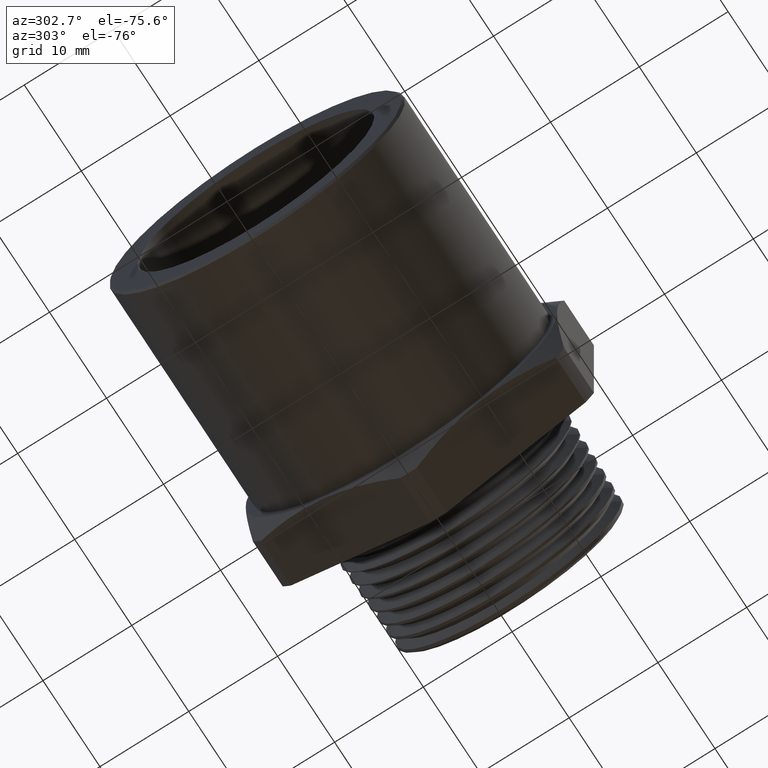
[diagram: clean part render]
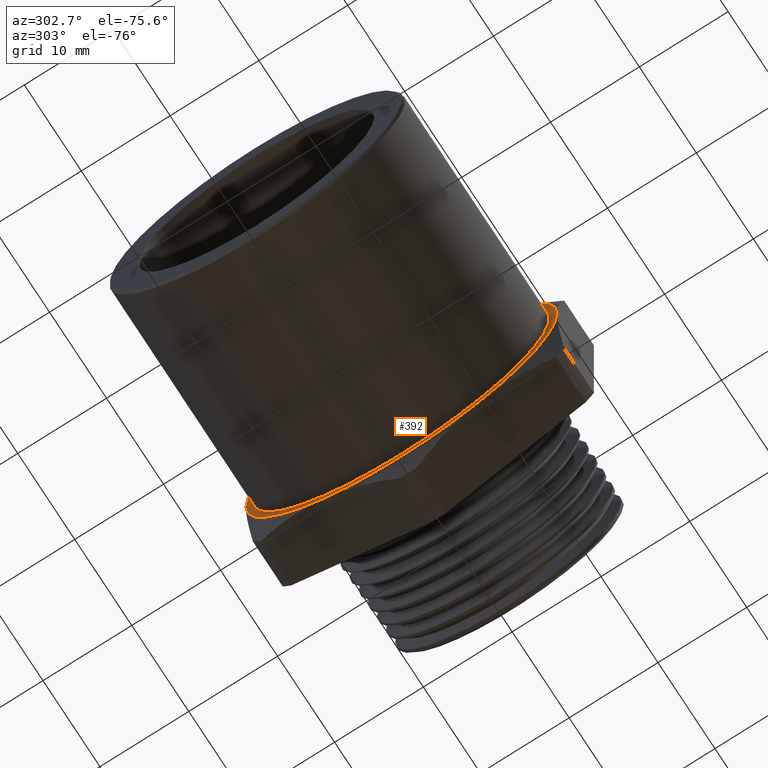
[diagram: same view with one face highlighted and labeled with its STEP entity id]
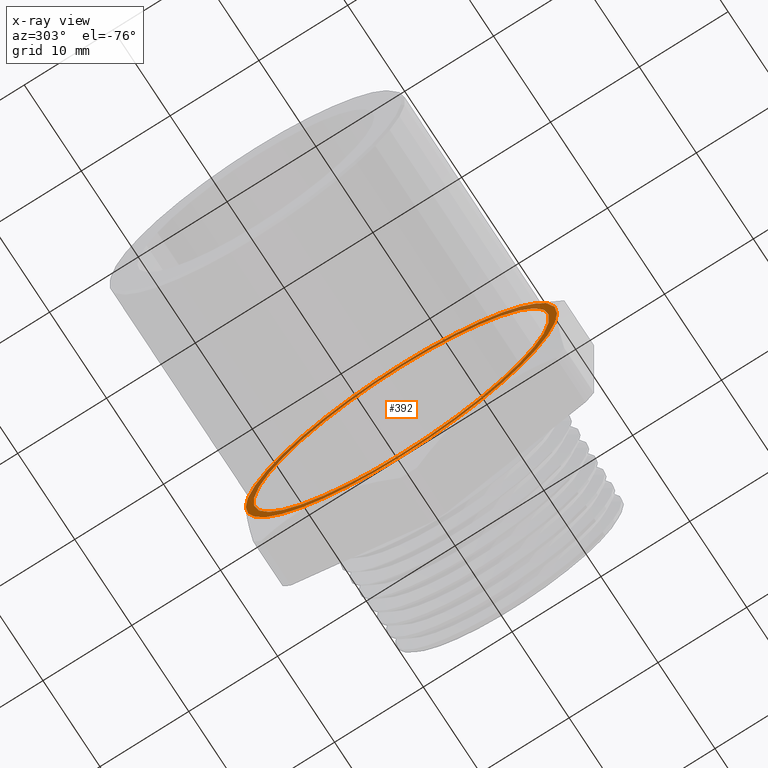
[diagram: x-ray of the same camera — body ghosted, the highlighted face saturated]
A machine part, auxiliary view. The second image highlights one B-rep face of the part: STEP entity #392.
The next image is the same camera in x-ray: the body ghosted, the highlighted face saturated — about 41% of this face is hidden behind the body in this view.
In plain terms, the highlighted planar face has unit normal (1, 0, 0).
Its self-contained STEP definition (entity closure, byte-faithful):
#312 = ORIENTED_EDGE ( 'NONE', *, *, #2418, .F. ) ;
#313 = ORIENTED_EDGE ( 'NONE', *, *, #314, .F. ) ;
#314 = EDGE_CURVE ( 'NONE', #2421, #2419, #1145, .T. ) ;
#315 = EDGE_LOOP ( 'NONE', ( #316, #373, #376, #379, #382, #384, #385 ) ) ;
#316 = ORIENTED_EDGE ( 'NONE', *, *, #317, .T. ) ;
#317 = EDGE_CURVE ( 'NONE', #371, #372, #1140, .T. ) ;
#356 = EDGE_CURVE ( 'NONE', #2445, #371, #1184, .T. ) ;
#371 = VERTEX_POINT ( 'NONE', #1213 ) ;
#372 = VERTEX_POINT ( 'NONE', #1212 ) ;
#373 = ORIENTED_EDGE ( 'NONE', *, *, #374, .T. ) ;
#374 = EDGE_CURVE ( 'NONE', #372, #375, #1211, .T. ) ;
#375 = VERTEX_POINT ( 'NONE', #1272 ) ;
#376 = ORIENTED_EDGE ( 'NONE', *, *, #377, .T. ) ;
#377 = EDGE_CURVE ( 'NONE', #375, #378, #1267, .T. ) ;
#378 = VERTEX_POINT ( 'NONE', #1262 ) ;
#379 = ORIENTED_EDGE ( 'NONE', *, *, #380, .T. ) ;
#380 = EDGE_CURVE ( 'NONE', #378, #381, #1261, .T. ) ;
#381 = VERTEX_POINT ( 'NONE', #1256 ) ;
#382 = ORIENTED_EDGE ( 'NONE', *, *, #383, .T. ) ;
#383 = EDGE_CURVE ( 'NONE', #381, #2438, #1255, .T. ) ;
#384 = ORIENTED_EDGE ( 'NONE', *, *, #2242, .T. ) ;
#385 = ORIENTED_EDGE ( 'NONE', *, *, #356, .T. ) ;
#392 = ADVANCED_FACE ( 'NONE', ( #1295, #1294 ), #1293, .F. ) ;
#393 = EDGE_LOOP ( 'NONE', ( #312, #313 ) ) ;
#1137 = DIRECTION ( 'NONE',  ( 0.0000000000000000000, 0.0000000000000000000, 1.000000000000000000 ) ) ;
#1138 = DIRECTION ( 'NONE',  ( -1.000000000000000000, 0.0000000000000000000, 0.0000000000000000000 ) ) ;
#1139 = AXIS2_PLACEMENT_3D ( 'NONE', #1146, #1138, #1137 ) ;
#1140 = CIRCLE ( 'NONE', #1139, 0.6899999999999997200 ) ;
#1141 = DIRECTION ( 'NONE',  ( 0.0000000000000000000, 0.0000000000000000000, 1.000000000000000000 ) ) ;
#1142 = DIRECTION ( 'NONE',  ( -1.000000000000000000, 0.0000000000000000000, 0.0000000000000000000 ) ) ;
#1143 = CARTESIAN_POINT ( 'NONE',  ( -0.7649999999999999000, 0.0000000000000000000, 0.0000000000000000000 ) ) ;
#1144 = AXIS2_PLACEMENT_3D ( 'NONE', #1143, #1142, #1141 ) ;
#1145 = CIRCLE ( 'NONE', #1144, 0.6554999999999998600 ) ;
#1146 = CARTESIAN_POINT ( 'NONE',  ( -0.7649999999999999000, 0.0000000000000000000, 0.0000000000000000000 ) ) ;
#1181 = DIRECTION ( 'NONE',  ( 0.0000000000000000000, 0.0000000000000000000, 1.000000000000000000 ) ) ;
#1182 = DIRECTION ( 'NONE',  ( -1.000000000000000000, 0.0000000000000000000, 0.0000000000000000000 ) ) ;
#1183 = AXIS2_PLACEMENT_3D ( 'NONE', #1190, #1182, #1181 ) ;
#1184 = CIRCLE ( 'NONE', #1183, 0.6899999999999997200 ) ;
#1190 = CARTESIAN_POINT ( 'NONE',  ( -0.7649999999999999000, 0.0000000000000000000, 0.0000000000000000000 ) ) ;
#1211 = CIRCLE ( 'NONE', #1271, 0.6899999999999997200 ) ;
#1212 = CARTESIAN_POINT ( 'NONE',  ( -0.7649999999999999000, 0.3450000000000002000, -0.5975575286112627700 ) ) ;
#1213 = CARTESIAN_POINT ( 'NONE',  ( -0.7649999999999999000, 0.6900000000000000600, 0.0000000000000000000 ) ) ;
#1251 = DIRECTION ( 'NONE',  ( 0.0000000000000000000, 0.0000000000000000000, 1.000000000000000000 ) ) ;
#1252 = DIRECTION ( 'NONE',  ( -1.000000000000000000, 0.0000000000000000000, 0.0000000000000000000 ) ) ;
#1253 = CARTESIAN_POINT ( 'NONE',  ( -0.7649999999999999000, 0.0000000000000000000, 0.0000000000000000000 ) ) ;
#1254 = AXIS2_PLACEMENT_3D ( 'NONE', #1253, #1252, #1251 ) ;
#1255 = CIRCLE ( 'NONE', #1254, 0.6899999999999997200 ) ;
#1256 = CARTESIAN_POINT ( 'NONE',  ( -0.7649999999999999000, -0.3449999999999998600, 0.5975575286112625500 ) ) ;
#1257 = DIRECTION ( 'NONE',  ( 0.0000000000000000000, 0.0000000000000000000, 1.000000000000000000 ) ) ;
#1258 = DIRECTION ( 'NONE',  ( -1.000000000000000000, 0.0000000000000000000, 0.0000000000000000000 ) ) ;
#1259 = CARTESIAN_POINT ( 'NONE',  ( -0.7649999999999999000, 0.0000000000000000000, 0.0000000000000000000 ) ) ;
#1260 = AXIS2_PLACEMENT_3D ( 'NONE', #1259, #1258, #1257 ) ;
#1261 = CIRCLE ( 'NONE', #1260, 0.6899999999999997200 ) ;
#1262 = CARTESIAN_POINT ( 'NONE',  ( -0.7649999999999999000, -0.6900000000000001700, 0.0000000000000000000 ) ) ;
#1263 = DIRECTION ( 'NONE',  ( 0.0000000000000000000, 0.0000000000000000000, 1.000000000000000000 ) ) ;
#1264 = DIRECTION ( 'NONE',  ( -1.000000000000000000, 0.0000000000000000000, 0.0000000000000000000 ) ) ;
#1265 = CARTESIAN_POINT ( 'NONE',  ( -0.7649999999999999000, 0.0000000000000000000, 0.0000000000000000000 ) ) ;
#1266 = AXIS2_PLACEMENT_3D ( 'NONE', #1265, #1264, #1263 ) ;
#1267 = CIRCLE ( 'NONE', #1266, 0.6899999999999997200 ) ;
#1268 = DIRECTION ( 'NONE',  ( 0.0000000000000000000, 0.0000000000000000000, 1.000000000000000000 ) ) ;
#1269 = DIRECTION ( 'NONE',  ( -1.000000000000000000, 0.0000000000000000000, 0.0000000000000000000 ) ) ;
#1270 = CARTESIAN_POINT ( 'NONE',  ( -0.7649999999999999000, 0.0000000000000000000, 0.0000000000000000000 ) ) ;
#1271 = AXIS2_PLACEMENT_3D ( 'NONE', #1270, #1269, #1268 ) ;
#1272 = CARTESIAN_POINT ( 'NONE',  ( -0.7649999999999999000, -0.3450000000000001400, -0.5975575286112626600 ) ) ;
#1289 = DIRECTION ( 'NONE',  ( 0.0000000000000000000, 0.0000000000000000000, -1.000000000000000000 ) ) ;
#1290 = DIRECTION ( 'NONE',  ( 1.000000000000000000, 0.0000000000000000000, 0.0000000000000000000 ) ) ;
#1291 = CARTESIAN_POINT ( 'NONE',  ( -0.7649999999999999000, 0.7762500000000000000, 0.0000000000000000000 ) ) ;
#1292 = AXIS2_PLACEMENT_3D ( 'NONE', #1291, #1290, #1289 ) ;
#1293 = PLANE ( 'NONE',  #1292 ) ;
#1294 = FACE_OUTER_BOUND ( 'NONE', #315, .T. ) ;
#1295 = FACE_BOUND ( 'NONE', #393, .T. ) ;
#1500 = DIRECTION ( 'NONE',  ( 0.0000000000000000000, 0.0000000000000000000, 1.000000000000000000 ) ) ;
#1501 = DIRECTION ( 'NONE',  ( -1.000000000000000000, 0.0000000000000000000, 0.0000000000000000000 ) ) ;
#1502 = CARTESIAN_POINT ( 'NONE',  ( -0.7649999999999999000, 0.0000000000000000000, 0.0000000000000000000 ) ) ;
#1503 = AXIS2_PLACEMENT_3D ( 'NONE', #1502, #1501, #1500 ) ;
#1504 = CIRCLE ( 'NONE', #1503, 0.6899999999999997200 ) ;
#1701 = DIRECTION ( 'NONE',  ( -1.000000000000000000, 0.0000000000000000000, 0.0000000000000000000 ) ) ;
#1702 = CARTESIAN_POINT ( 'NONE',  ( -0.7649999999999999000, 0.0000000000000000000, 0.0000000000000000000 ) ) ;
#1703 = AXIS2_PLACEMENT_3D ( 'NONE', #1702, #1701, #1763 ) ;
#1704 = CIRCLE ( 'NONE', #1703, 0.6554999999999998600 ) ;
#1738 = CARTESIAN_POINT ( 'NONE',  ( -0.7649999999999999000, 0.3450000000000002000, 0.5975575286112629900 ) ) ;
#1748 = CARTESIAN_POINT ( 'NONE',  ( -0.7649999999999999000, 0.0000000000000000000, 0.6899999999999997200 ) ) ;
#1761 = CARTESIAN_POINT ( 'NONE',  ( -0.7649999999999999000, 8.027559768410899100E-017, -0.6554999999999998600 ) ) ;
#1762 = CARTESIAN_POINT ( 'NONE',  ( -0.7649999999999999000, 0.0000000000000000000, 0.6554999999999998600 ) ) ;
#1763 = DIRECTION ( 'NONE',  ( 0.0000000000000000000, 0.0000000000000000000, 1.000000000000000000 ) ) ;
#2242 = EDGE_CURVE ( 'NONE', #2438, #2445, #1504, .T. ) ;
#2418 = EDGE_CURVE ( 'NONE', #2419, #2421, #1704, .T. ) ;
#2419 = VERTEX_POINT ( 'NONE', #1762 ) ;
#2421 = VERTEX_POINT ( 'NONE', #1761 ) ;
#2438 = VERTEX_POINT ( 'NONE', #1748 ) ;
#2445 = VERTEX_POINT ( 'NONE', #1738 ) ;